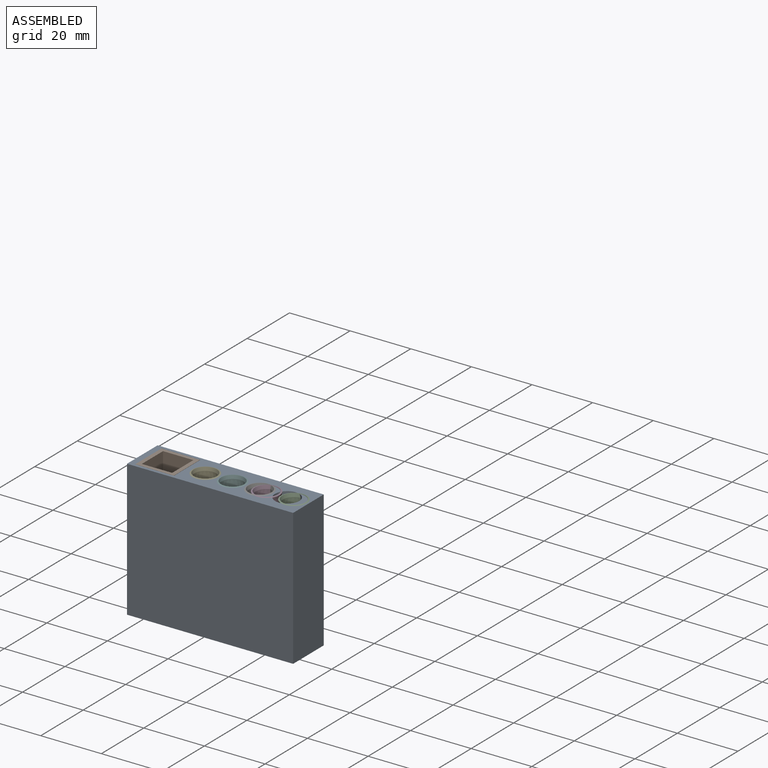
[diagram: assembled view]
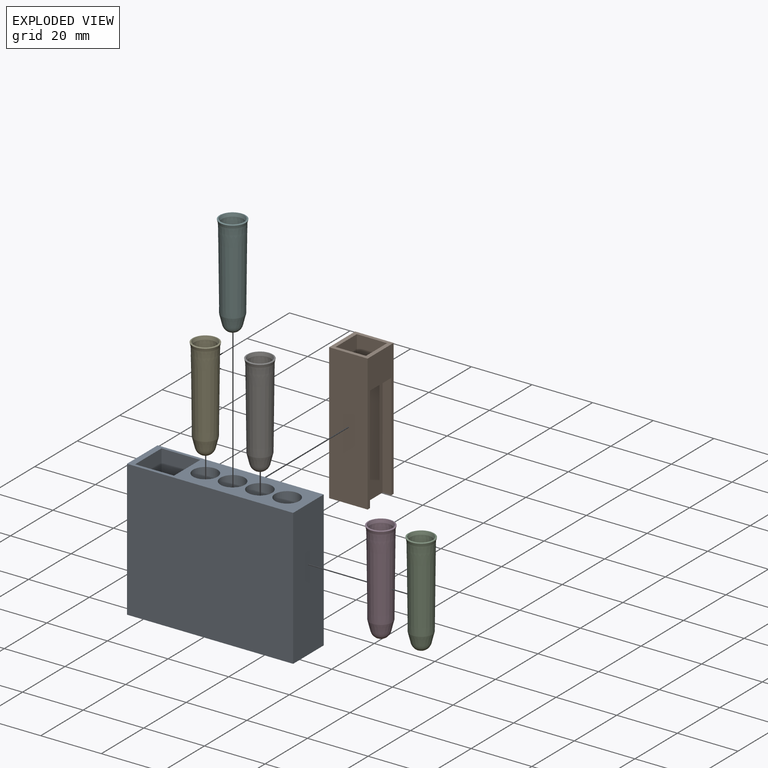
[diagram: exploded view]
GUIDED TOUR — MATED ASSEMBLY (Onshape document 0717bef66db02b48a8c97757, AutoMate assembly 0717bef66db02b48a8c97757_43befdc67e7c05a924248716_53739d4e575a2b0b9f38c01b_default)

This assembly has 7 components, labeled P0..P6 below (a component is one placed occurrence of a part; the same part can appear more than once), held together by 4 mates. A mate is a constraint between two components; its type names the relative motion it leaves free:
  FASTENED — locks the two components together rigidly (no relative motion).
Axis/direction vectors are unit vectors and 'through' points are millimeter coordinates, both in the assembly's world frame.

MATES
  1. FASTENED "緊固 4": P6 <-> P0, direction (0.000, 0.000, 1.000) through (-5.13, 2.04, 14.41) mm
  2. FASTENED "緊固 2": P4 <-> P0, direction (0.000, 0.000, 1.000) through (-23.13, 2.04, 14.41) mm
  3. FASTENED "緊固 1": P1 <-> P0, direction (0.000, 1.000, 0.000) through (-41.93, 2.04, 14.41) mm
  4. FASTENED "緊固 3": P5 <-> P0, direction (0.000, 0.000, 1.000) through (-14.13, 2.04, 14.41) mm

ASSEMBLY ORDER
  1. P0 — the base component [order heuristic]
  2. P2 — core [order heuristic]
  3. P3 — core [order heuristic]
  4. P4 — core [order heuristic]
  5. P5 — core [order heuristic]
  6. P6 — core [order heuristic]
  7. P1 [order verified]
Order-tag legend:
  [order verified] — this step's position reverses a verified removal order: the component was checked to insert without passing through the ones already placed.
  [order heuristic] — the first 6 components form the assembly's core: parts whose collision-free extraction could not be verified, listed in mate-graph order.

Of the 7 components, 2 carry the full construction recipe — the FeatureScript program that regenerates the part's solid from scratch; the rest are supplied as boundary geometry only.
Each toured component is shown spotlighted twice — in the assembled view, then in the exploded view, where a leader line traces a displaced component back to its assembled socket (saturated green if recipe-attached, orange if geometry-only; every other component desaturated gray) — followed by its recipe or geometry summary and the mates that hold it.
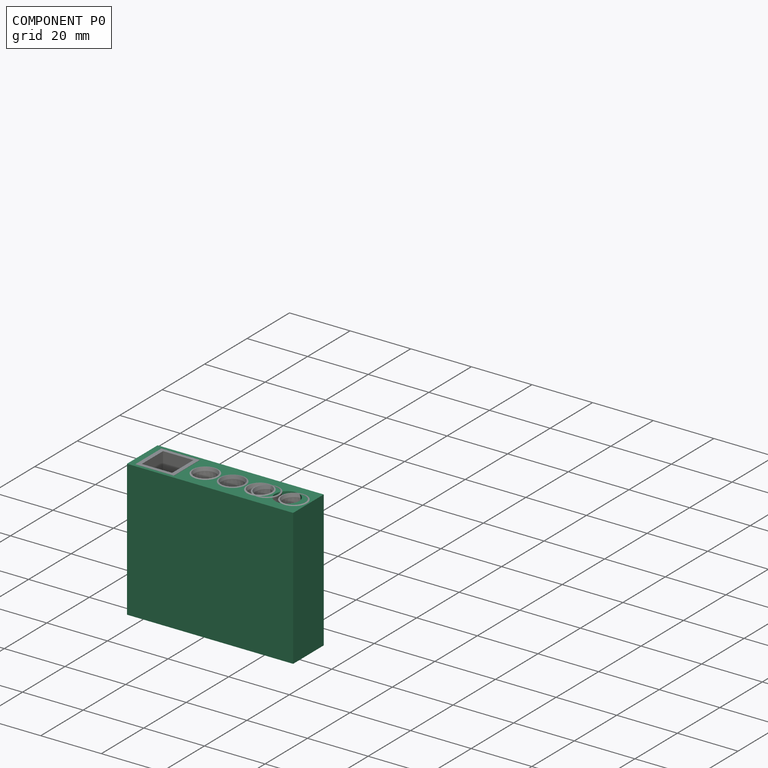
[diagram: component P0 — assembled]
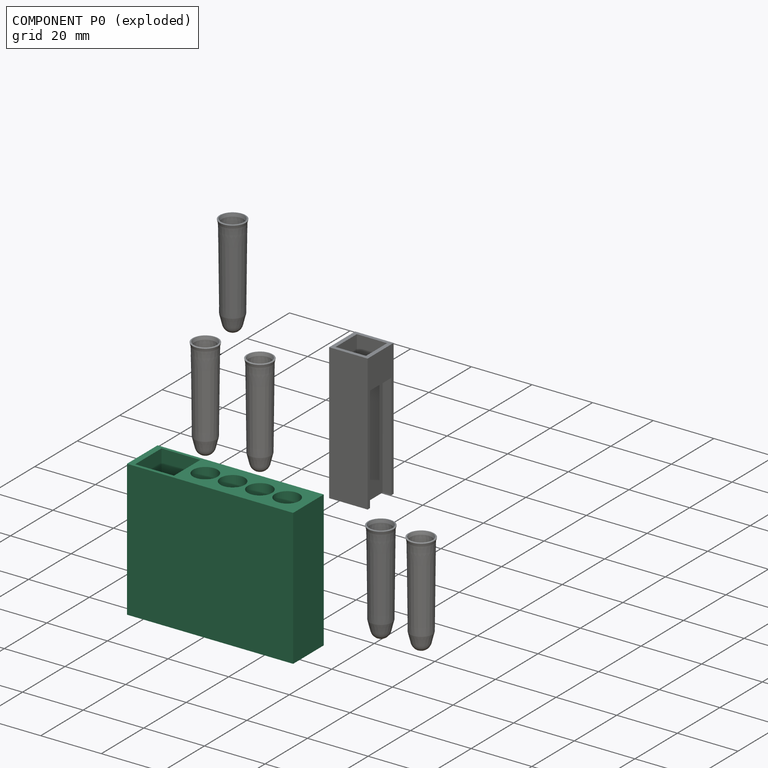
[diagram: component P0 — exploded]
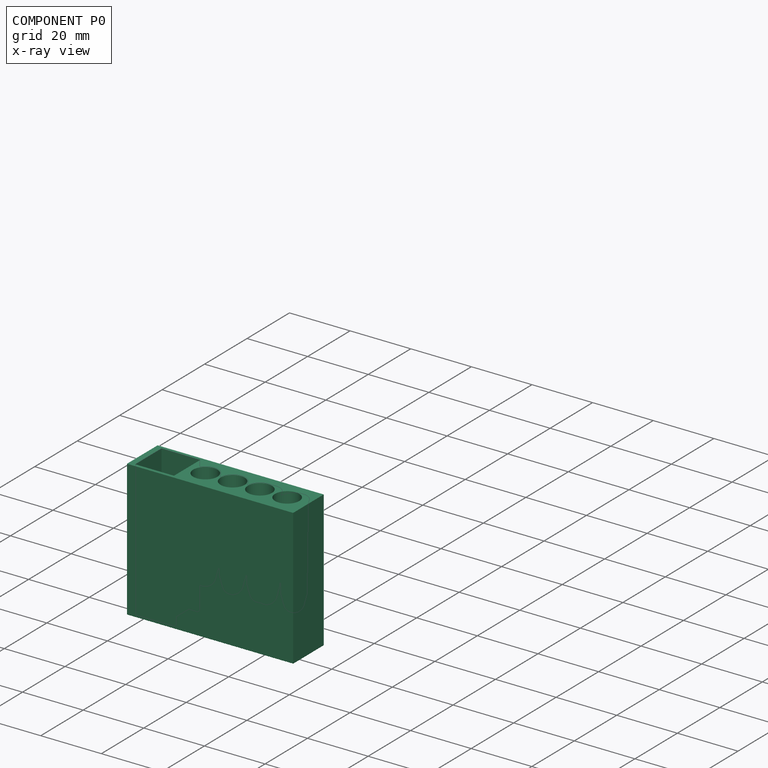
[diagram: component P0 — x-ray view]
COMPONENT P0 — recipe-attached (CADFS 00457629, mesh-verified: the recipe's output STEP matches this component's geometry to below the mesh-comparison resolution (tessellation chordal tolerance ~0.109 mm)).
Held by: FASTENED mate "緊固 4" to P6; FASTENED mate "緊固 2" to P4; FASTENED mate "緊固 1" to P1; FASTENED mate "緊固 3" to P5.
Construction recipe (FeatureScript — the CAD program that rebuilds this solid; sketch coordinates are in the units given by the * unit suffixes, e.g. mm):

FeatureScript 1511;
import(path : "onshape/std/geometry.fs", version : "1511.0");
import(path : "onshape/std/common.fs", version : "1511.0");
const mm = millimeter;
const VERTEX = EntityType.VERTEX;
const EDGE = EntityType.EDGE;
const FACE = EntityType.FACE;
const BODY = EntityType.BODY;
function v(x, y){return vector(x, y);}
function OD(order){return orderDisambiguation(order);}
function OSD(set){return originalSetDisambiguation(set);}
function TD(topology){return topologyDisambiguation(topology);}
function TDD(query){return trueDependencyDisambiguation(query);}
function sQuery(a, b, c) {return sketchEntityQuery(a, b, c);}

annotation { "Feature Type Name" : "Feature", "Feature Type Description" : "" }
export const myFeature = defineFeature(function(context is Context, id is Id, definition is map)
    precondition{}
    {
        {
            var Q0;
            Q0=qCreatedBy(makeId("Top.planeOp"),FACE);
            var sketch = newSketch(context, id + "F0", { "sketchPlane" : qUnion([Q0])});
            skLineSegment(sketch, "E0.bottom", {"start": v(-47.8, 7.2) * mm, "end": v(7, 7.2) * mm});
            skLineSegment(sketch, "E0.top", {"start": v(-47.8, -7.2) * mm, "end": v(7, -7.2) * mm});
            skLineSegment(sketch, "E0.left", {"start": v(-47.8, 7.2) * mm, "end": v(-47.8, -7.2) * mm});
            skLineSegment(sketch, "E0.right", {"start": v(7, 7.2) * mm, "end": v(7, -7.2) * mm});
            skCircle(sketch, "E1", {"center": v(-27, 0) * mm, "radius": 4 * mm});
            skCircle(sketch, "E2", {"center": v(-18, 0) * mm, "radius": 4 * mm});
            skCircle(sketch, "E3", {"center": v(0, 0) * mm, "radius": 4 * mm});
            skLineSegment(sketch, "E4.bottom", {"start": v(-45.8, 6.2) * mm, "end": v(-33, 6.2) * mm});
            skLineSegment(sketch, "E4.top", {"start": v(-45.8, -6.2) * mm, "end": v(-33, -6.2) * mm});
            skLineSegment(sketch, "E4.left", {"start": v(-45.8, 6.2) * mm, "end": v(-45.8, -6.2) * mm});
            skLineSegment(sketch, "E4.right", {"start": v(-33, 6.2) * mm, "end": v(-33, -6.2) * mm});
            skCircle(sketch, "E5", {"center": v(-9, 0) * mm, "radius": 4 * mm});
            skSolve(sketch);
        }
        {
            var Q0;
            Q0=makeQuery(id+"F0.imprint","IMPRINT",FACE,{"disambiguationData":[TD([[makeQuery(id+"F0.imprint","IMPRINT",EDGE,{"derivedFrom":sQuery(id+"F0.wireOp",EDGE,"E0.bottom")}),-1.0]])]});
            extrude(context, id + "F1", {"entities" : qUnion([Q0]), "depth" : 45 * mm});
        }
    });
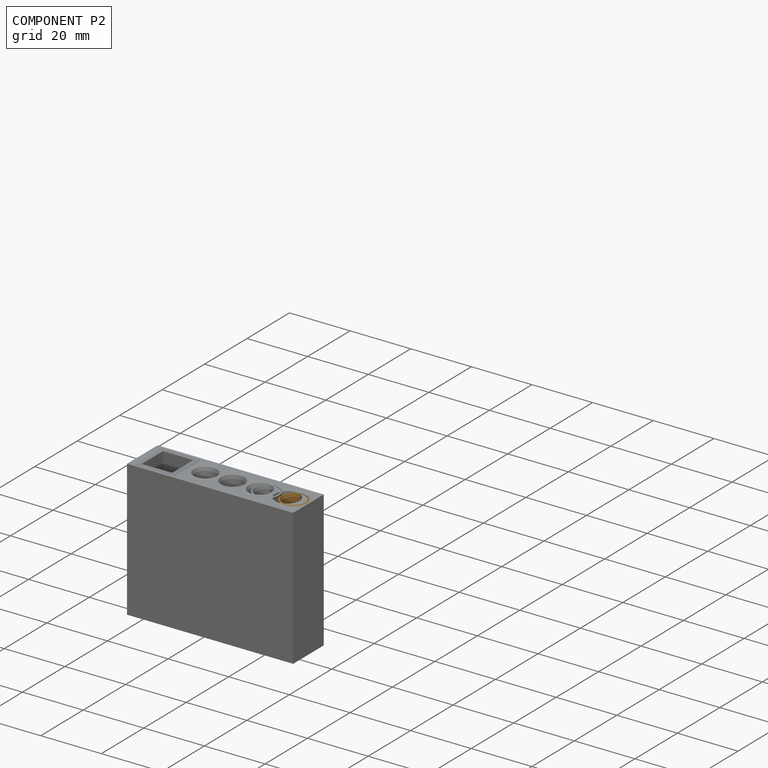
[diagram: component P2 — assembled]
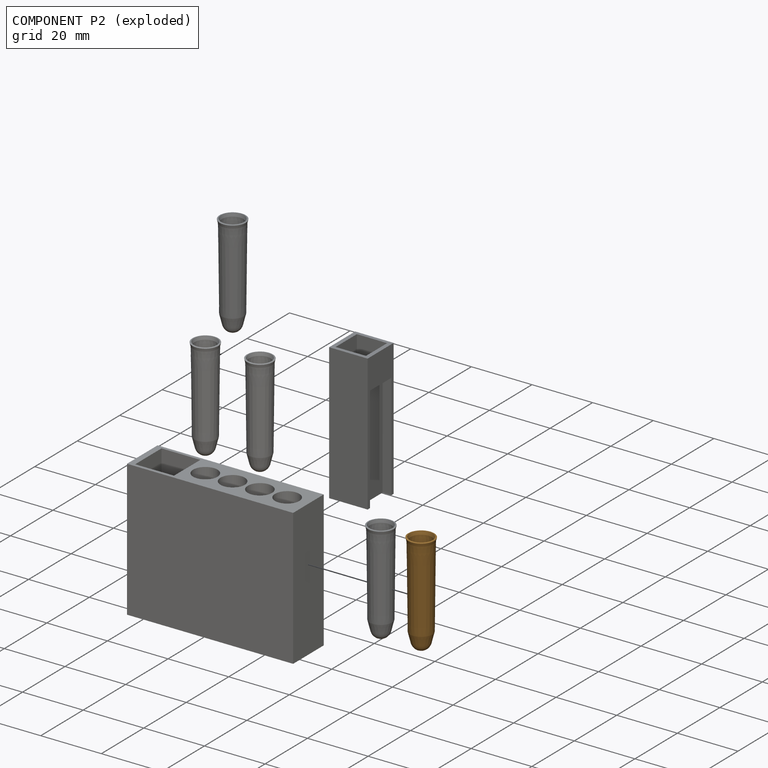
[diagram: component P2 — exploded]
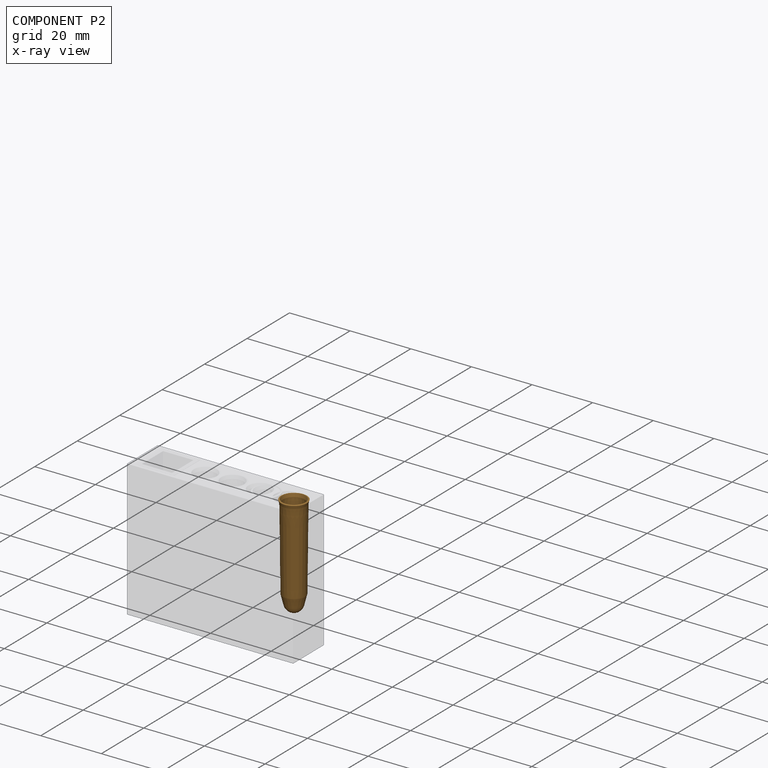
[diagram: component P2 — x-ray view]
COMPONENT P2 — geometry summary (no construction recipe available for this part):
  bounding box: 33.8 x 8.6 x 8.6 mm
  B-rep topology: 1 solid, 11 faces, 44 edges
  volume: 366 mm^3 (15% of its bounding box)
  symmetry: revolution-symmetric about the z axis through its bounding-box center; mirror-symmetric across its x mid-plane, y mid-plane
Held by: no mates (free).
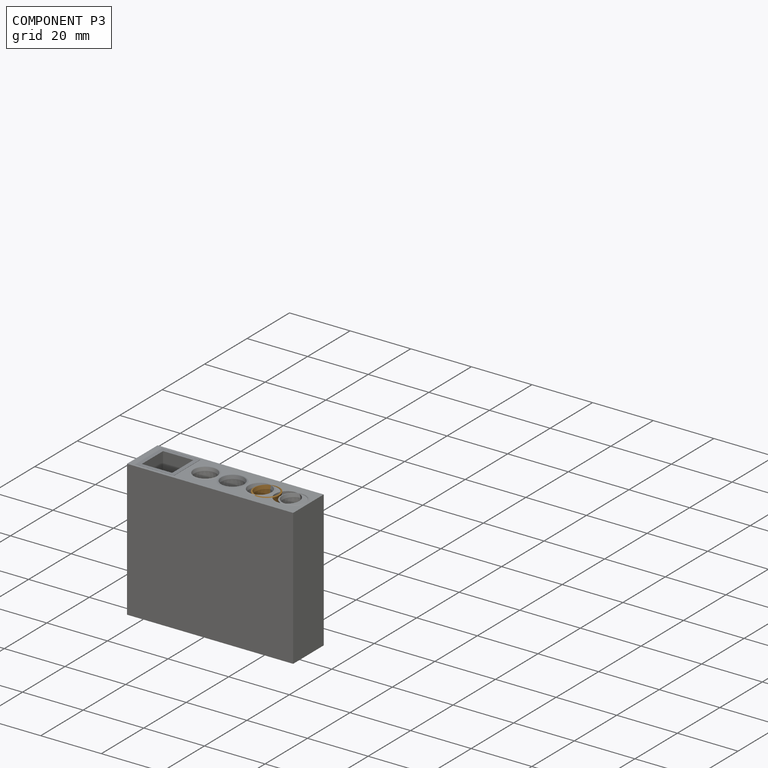
[diagram: component P3 — assembled]
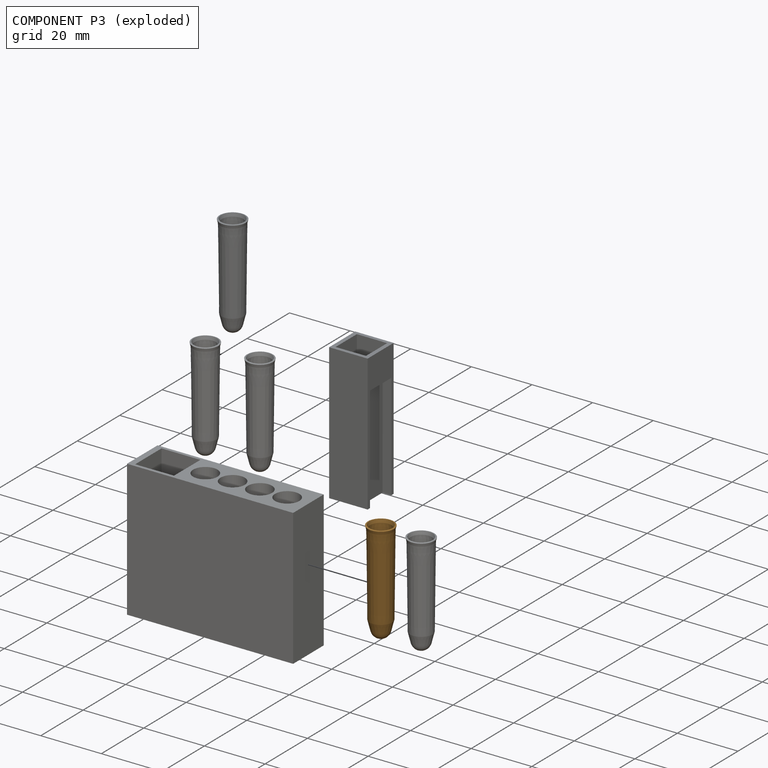
[diagram: component P3 — exploded]
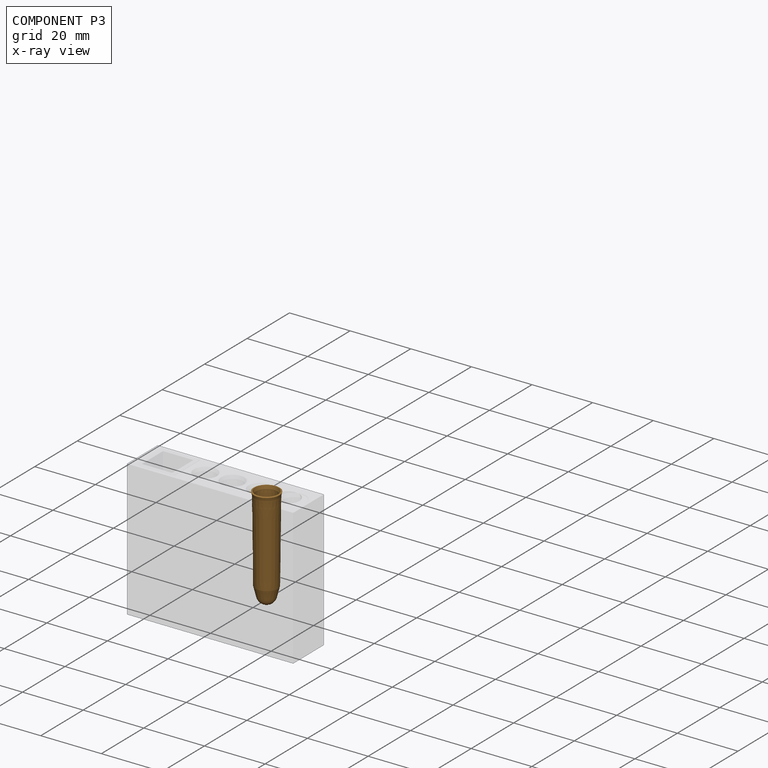
[diagram: component P3 — x-ray view]
COMPONENT P3 — geometry summary (no construction recipe available for this part):
  bounding box: 33.8 x 8.6 x 8.6 mm
  B-rep topology: 1 solid, 11 faces, 44 edges
  volume: 366 mm^3 (15% of its bounding box)
  symmetry: revolution-symmetric about the z axis through its bounding-box center; mirror-symmetric across its x mid-plane, y mid-plane
Held by: no mates (free).
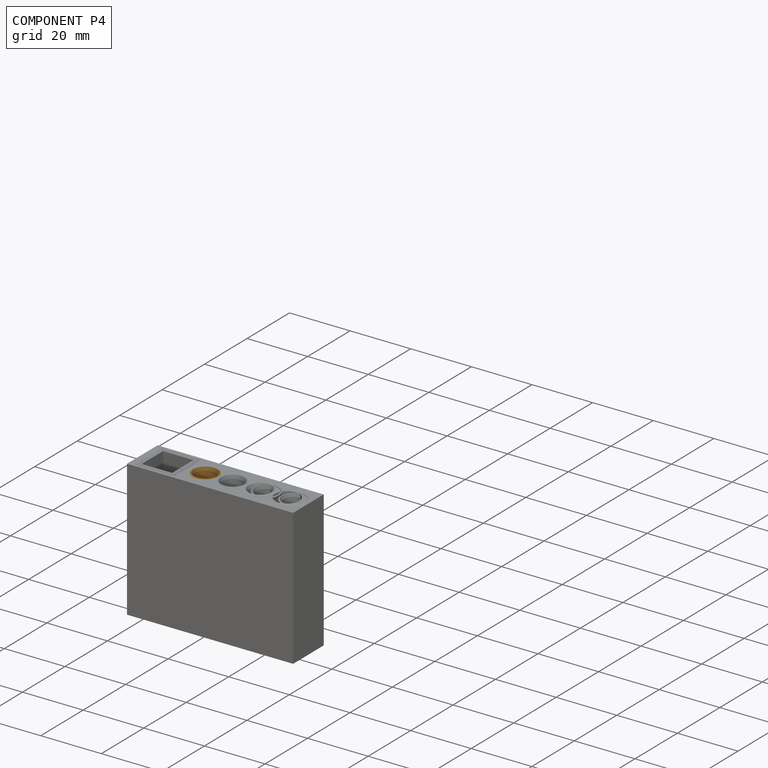
[diagram: component P4 — assembled]
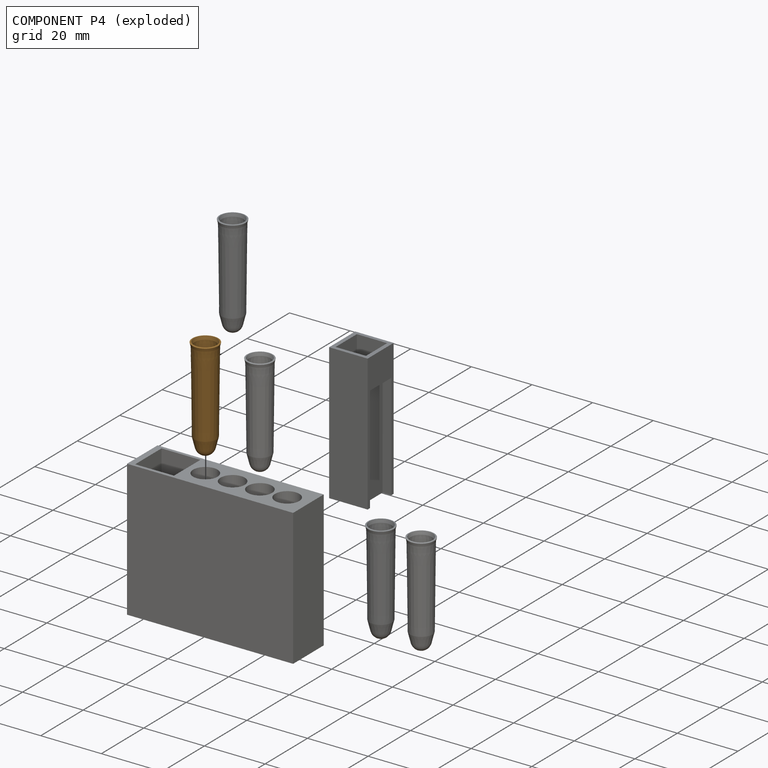
[diagram: component P4 — exploded]
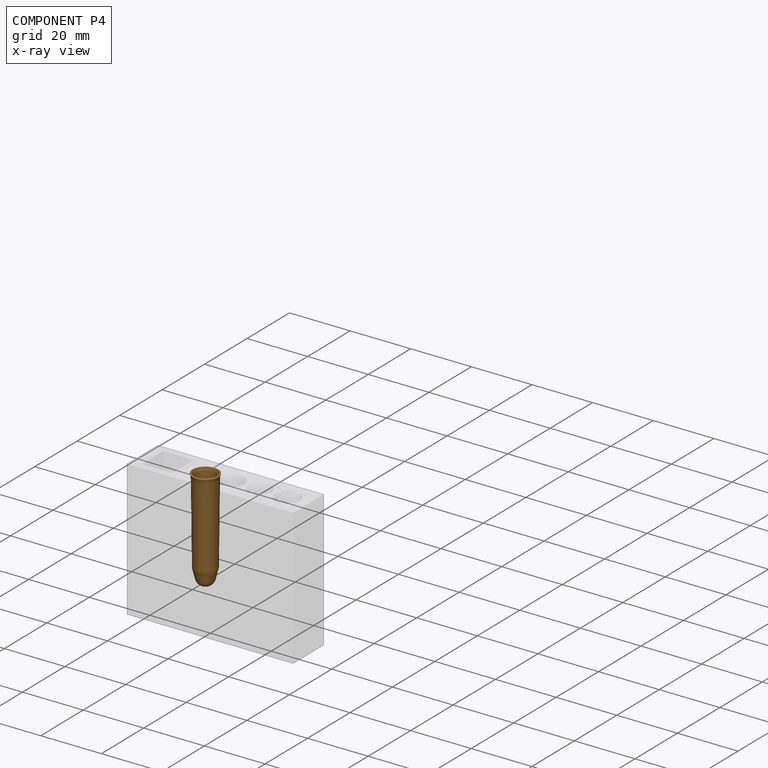
[diagram: component P4 — x-ray view]
COMPONENT P4 — geometry summary (no construction recipe available for this part):
  bounding box: 33.8 x 8.6 x 8.6 mm
  B-rep topology: 1 solid, 11 faces, 44 edges
  volume: 366 mm^3 (15% of its bounding box)
  symmetry: revolution-symmetric about the z axis through its bounding-box center; mirror-symmetric across its x mid-plane, y mid-plane
Held by: FASTENED mate "緊固 2" to P0.
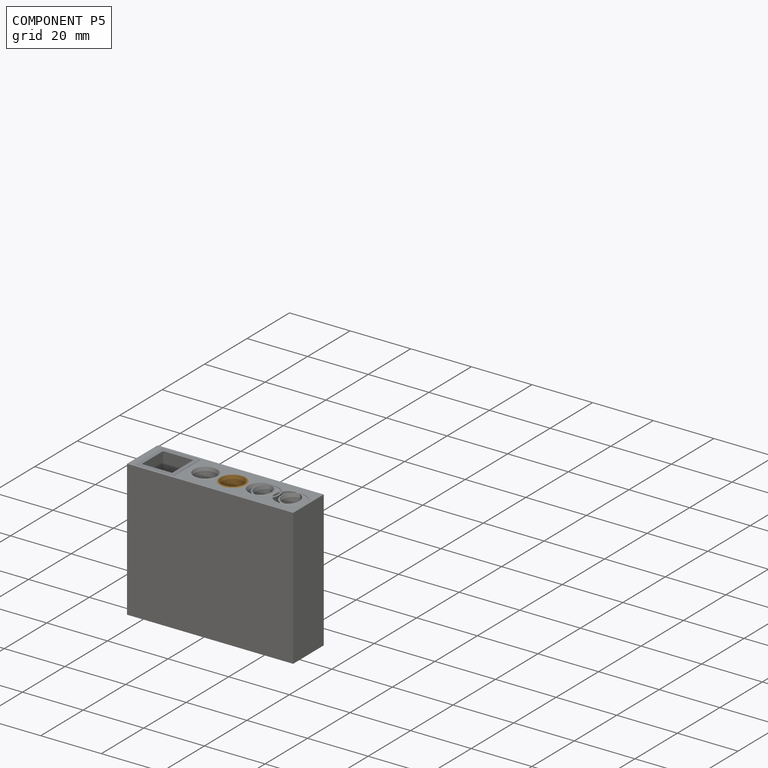
[diagram: component P5 — assembled]
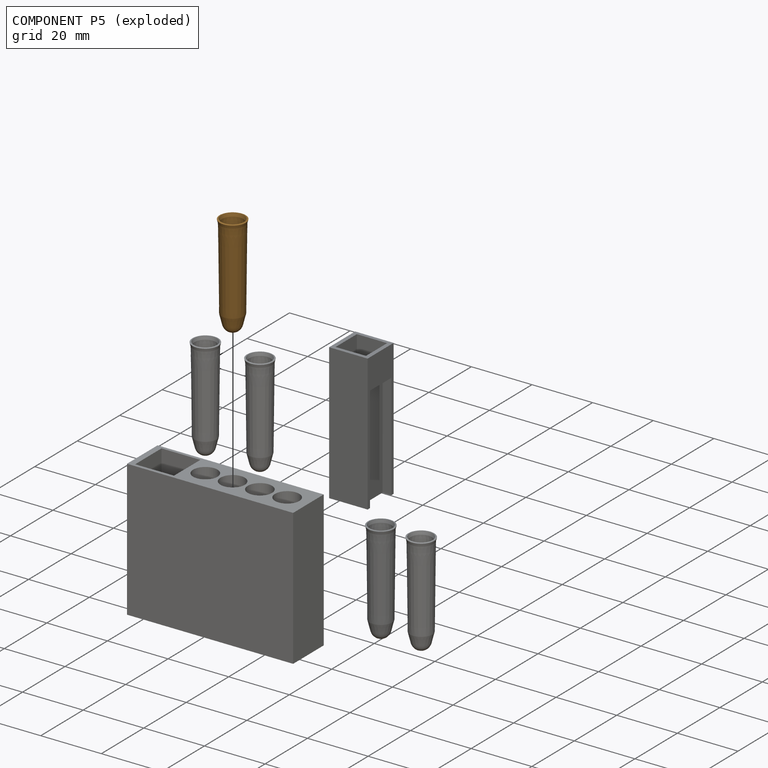
[diagram: component P5 — exploded]
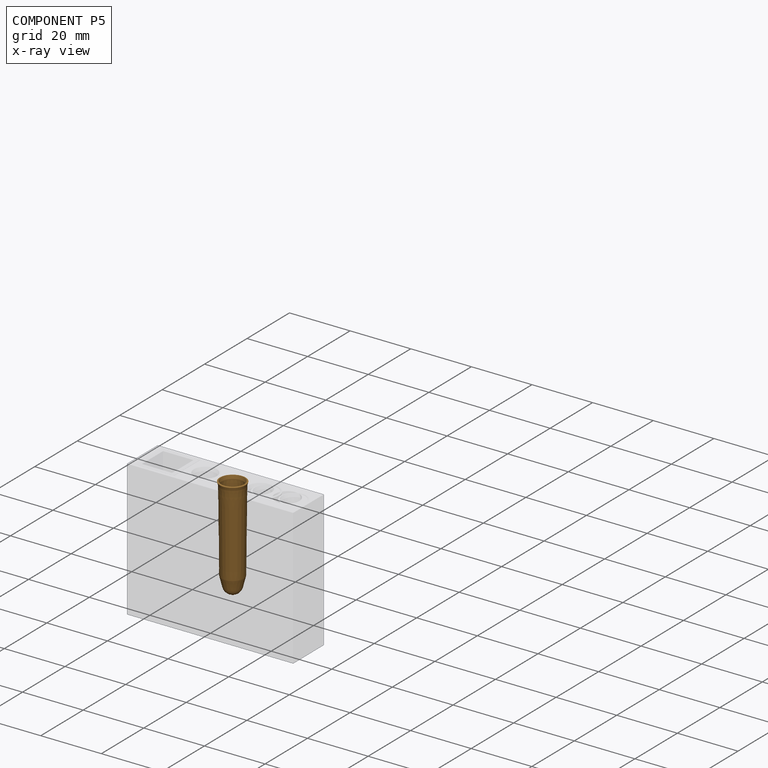
[diagram: component P5 — x-ray view]
COMPONENT P5 — geometry summary (no construction recipe available for this part):
  bounding box: 33.8 x 8.6 x 8.6 mm
  B-rep topology: 1 solid, 11 faces, 44 edges
  volume: 366 mm^3 (15% of its bounding box)
  symmetry: revolution-symmetric about the z axis through its bounding-box center; mirror-symmetric across its x mid-plane, y mid-plane
Held by: FASTENED mate "緊固 3" to P0.
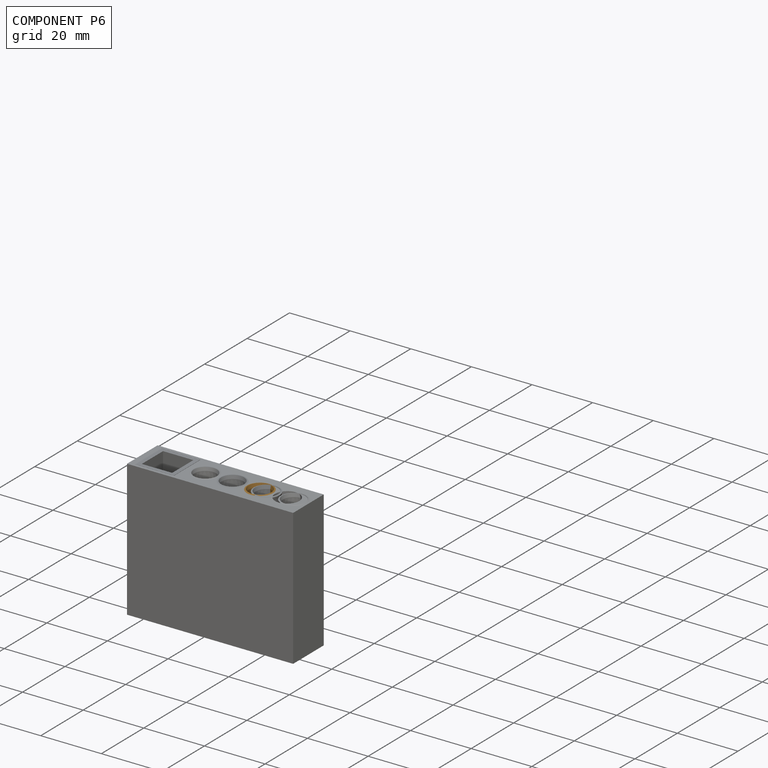
[diagram: component P6 — assembled]
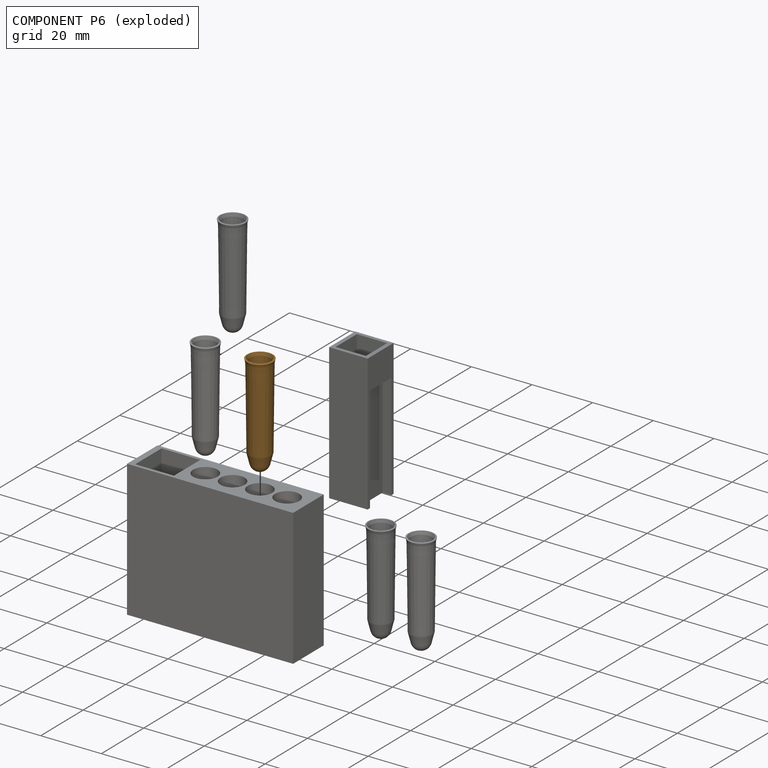
[diagram: component P6 — exploded]
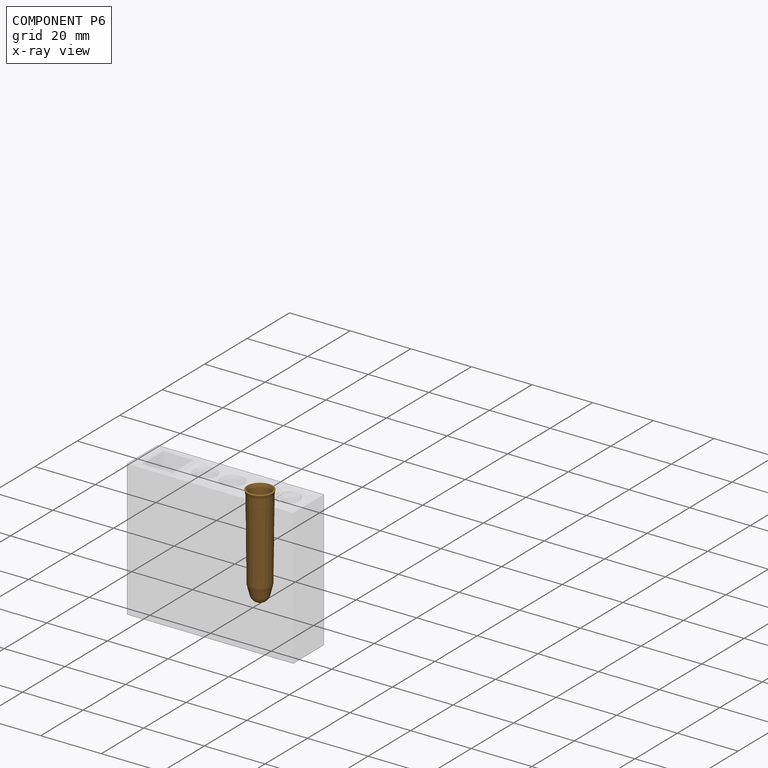
[diagram: component P6 — x-ray view]
COMPONENT P6 — geometry summary (no construction recipe available for this part):
  bounding box: 33.8 x 8.6 x 8.6 mm
  B-rep topology: 1 solid, 11 faces, 44 edges
  volume: 366 mm^3 (15% of its bounding box)
  symmetry: revolution-symmetric about the z axis through its bounding-box center; mirror-symmetric across its x mid-plane, y mid-plane
Held by: FASTENED mate "緊固 4" to P0.
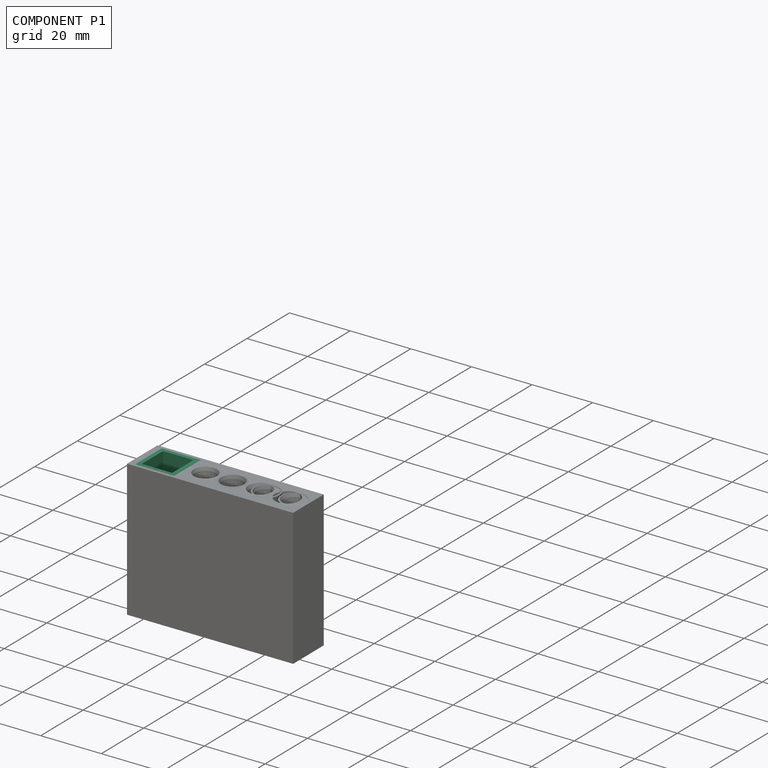
[diagram: component P1 — assembled]
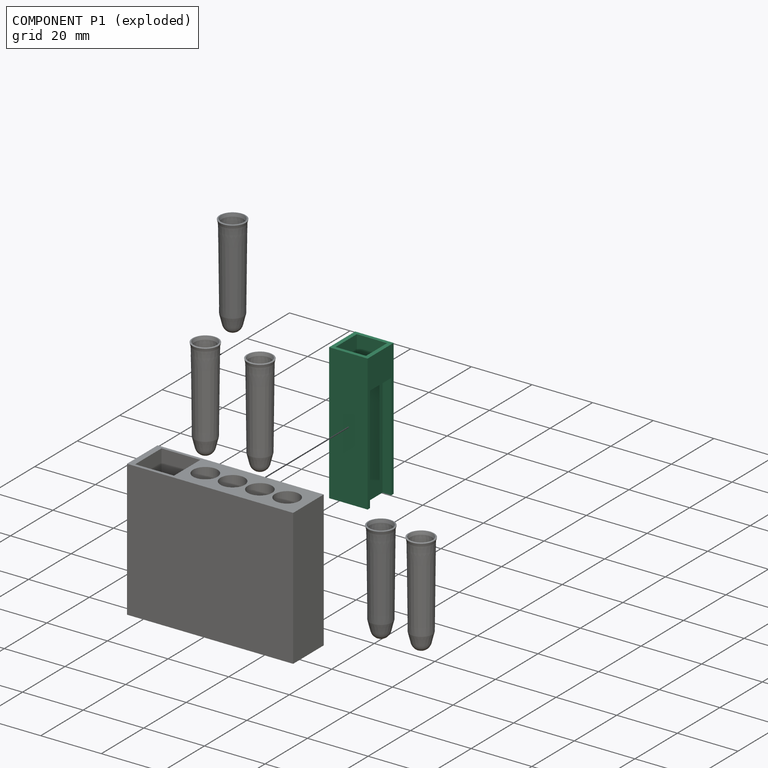
[diagram: component P1 — exploded]
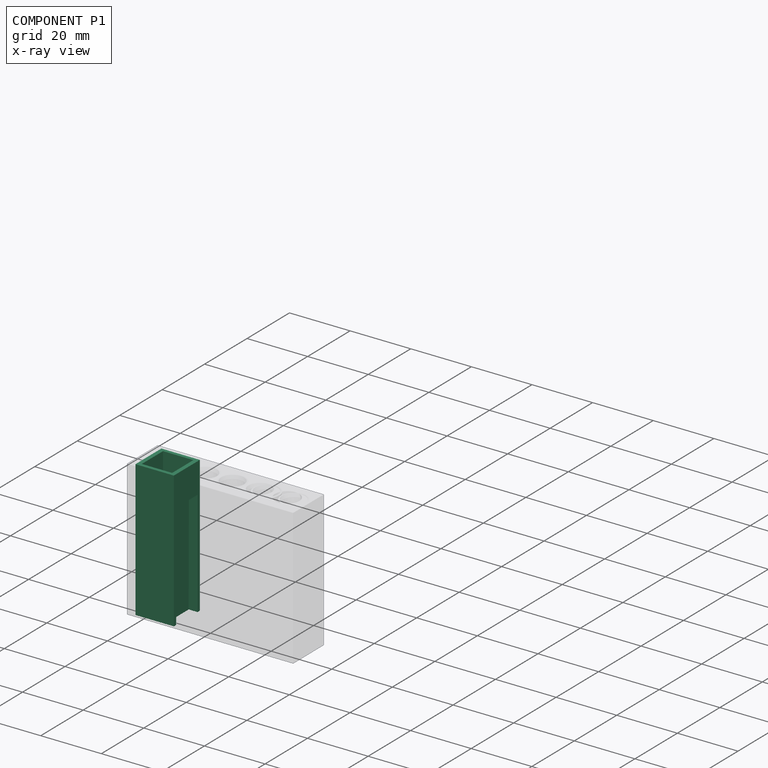
[diagram: component P1 — x-ray view]
COMPONENT P1 — recipe-attached (CADFS 00457624, mesh-verified: the recipe's output STEP matches this component's geometry to below the mesh-comparison resolution (tessellation chordal tolerance ~0.0725 mm)).
Held by: FASTENED mate "緊固 1" to P0.
Construction recipe (FeatureScript — the CAD program that rebuilds this solid; sketch coordinates are in the units given by the * unit suffixes, e.g. mm):

FeatureScript 1511;
import(path : "onshape/std/geometry.fs", version : "1511.0");
import(path : "onshape/std/common.fs", version : "1511.0");
const mm = millimeter;
const VERTEX = EntityType.VERTEX;
const EDGE = EntityType.EDGE;
const FACE = EntityType.FACE;
const BODY = EntityType.BODY;
function v(x, y){return vector(x, y);}
function OD(order){return orderDisambiguation(order);}
function OSD(set){return originalSetDisambiguation(set);}
function TD(topology){return topologyDisambiguation(topology);}
function TDD(query){return trueDependencyDisambiguation(query);}
function sQuery(a, b, c) {return sketchEntityQuery(a, b, c);}

annotation { "Feature Type Name" : "Feature", "Feature Type Description" : "" }
export const myFeature = defineFeature(function(context is Context, id is Id, definition is map)
    precondition{}
    {
        {
            var Q0;
            Q0=qCreatedBy(makeId("Front.planeOp"),FACE);
            var sketch = newSketch(context, id + "F0", { "sketchPlane" : qUnion([Q0])});
            skLineSegment(sketch, "E0", {"start": v(-6.35, 45) * mm, "end": v(-6.35, 35) * mm});
            skLineSegment(sketch, "E1", {"start": v(-6.35, 35) * mm, "end": v(-3.51, 33) * mm});
            skLineSegment(sketch, "E2", {"start": v(-3.51, 33) * mm, "end": v(-3.44, 0) * mm});
            skLineSegment(sketch, "E3", {"start": v(-3.44, 0) * mm, "end": v(0, 0) * mm});
            skLineSegment(sketch, "E4", {"start": v(0, 0) * mm, "end": v(0, 1.69) * mm});
            skLineSegment(sketch, "E5", {"start": v(0, 1.69) * mm, "end": v(-2.35, 1.69) * mm});
            skLineSegment(sketch, "E6", {"start": v(-2.35, 1.69) * mm, "end": v(-2.42, 33.45) * mm});
            skLineSegment(sketch, "E7", {"start": v(-2.42, 33.45) * mm, "end": v(-5, 35.27) * mm});
            skLineSegment(sketch, "E8", {"start": v(-5, 35.27) * mm, "end": v(-5, 45) * mm});
            skLineSegment(sketch, "E9", {"start": v(-5, 45) * mm, "end": v(-6.35, 45) * mm});
            skLineSegment(sketch, "E10.MirrorCS", {"start": v(6.35, 35) * mm, "end": v(3.51, 33) * mm});
            skLineSegment(sketch, "E11.MirrorCS", {"start": v(0, 1.69) * mm, "end": v(2.35, 1.69) * mm});
            skLineSegment(sketch, "E12.MirrorCS", {"start": v(2.42, 33.45) * mm, "end": v(5, 35.27) * mm});
            skLineSegment(sketch, "E13.MirrorCS", {"start": v(5, 45) * mm, "end": v(6.35, 45) * mm});
            skLineSegment(sketch, "E14.MirrorCS", {"start": v(3.51, 33) * mm, "end": v(3.44, 0) * mm});
            skLineSegment(sketch, "E15.MirrorCS", {"start": v(3.44, 0) * mm, "end": v(0, 0) * mm});
            skLineSegment(sketch, "E16.MirrorCS", {"start": v(2.35, 1.69) * mm, "end": v(2.42, 33.45) * mm});
            skLineSegment(sketch, "E17.MirrorCS", {"start": v(5, 35.27) * mm, "end": v(5, 45) * mm});
            skLineSegment(sketch, "E18.MirrorCS", {"start": v(6.35, 45) * mm, "end": v(6.35, 35) * mm});
            skSolve(sketch);
        }
        {
            var Q0;
            Q0=makeQuery(id+"F0.imprint","IMPRINT",FACE,{"disambiguationData":[TD([[makeQuery(id+"F0.imprint","IMPRINT",EDGE,{"derivedFrom":sQuery(id+"F0.wireOp",EDGE,"E0")}),1.0]])]});
            var Q1;
            Q1=makeQuery(id+"F0.imprint","IMPRINT",FACE,{"disambiguationData":[TD([[makeQuery(id+"F0.imprint","IMPRINT",EDGE,{"derivedFrom":sQuery(id+"F0.wireOp",EDGE,"E10.MirrorCS")}),-1.0]])]});
            extrude(context, id + "F1", {"entities" : qUnion([Q0, Q1]), "depth" : 10 * mm, "offsetDistance" : 25 * mm});
        }
        {
            var Q0;
            Q0=qCreatedBy(makeId("Front.planeOp"),FACE);
            var sketch = newSketch(context, id + "F2", { "sketchPlane" : qUnion([Q0])});
            skLineSegment(sketch, "E19.bottom", {"start": v(6.35, 45) * mm, "end": v(-6.35, 45) * mm});
            skLineSegment(sketch, "E19.top", {"start": v(6.35, 0) * mm, "end": v(-6.35, 0) * mm});
            skLineSegment(sketch, "E19.left", {"start": v(6.35, 45) * mm, "end": v(6.35, 0) * mm});
            skLineSegment(sketch, "E19.right", {"start": v(-6.35, 45) * mm, "end": v(-6.35, 0) * mm});
            skSolve(sketch);
        }
        {
            var Q0;
            Q0 = qSketchRegion(id + "F2", true);
            extrude(context, id + "F3", {"entities" : qUnion([Q0]), "operationType" : NewBodyOperationType.ADD, "oppositeDirection" : true, "depth" : 1.14 * mm});
        }
        {
            var Q0;
            Q0=makeQuery(id+"F1.opExtrude","CAP_FACE",FACE,{"disambiguationData":[OSD([sQuery(id+"F0.wireOp",EDGE,"E0"),sQuery(id+"F0.wireOp",EDGE,"E1"),sQuery(id+"F0.wireOp",EDGE,"E2"),sQuery(id+"F0.wireOp",EDGE,"E3"),sQuery(id+"F0.wireOp",EDGE,"E5"),sQuery(id+"F0.wireOp",EDGE,"E6"),sQuery(id+"F0.wireOp",EDGE,"E7"),sQuery(id+"F0.wireOp",EDGE,"E8"),sQuery(id+"F0.wireOp",EDGE,"E9"),sQuery(id+"F0.wireOp",EDGE,"E10.MirrorCS"),sQuery(id+"F0.wireOp",EDGE,"E11.MirrorCS"),sQuery(id+"F0.wireOp",EDGE,"E12.MirrorCS"),sQuery(id+"F0.wireOp",EDGE,"E13.MirrorCS"),sQuery(id+"F0.wireOp",EDGE,"E14.MirrorCS"),sQuery(id+"F0.wireOp",EDGE,"E15.MirrorCS"),sQuery(id+"F0.wireOp",EDGE,"E16.MirrorCS"),sQuery(id+"F0.wireOp",EDGE,"E17.MirrorCS"),sQuery(id+"F0.wireOp",EDGE,"E18.MirrorCS")])],"isStart":false});
            var sketch = newSketch(context, id + "F4", { "sketchPlane" : qUnion([Q0])});
            skLineSegment(sketch, "E20.bottom", {"start": v(-6.35, 45) * mm, "end": v(6.35, 45) * mm});
            skLineSegment(sketch, "E20.top", {"start": v(-6.35, 0) * mm, "end": v(6.35, 0) * mm});
            skLineSegment(sketch, "E20.left", {"start": v(-6.35, 45) * mm, "end": v(-6.35, 0) * mm});
            skLineSegment(sketch, "E20.right", {"start": v(6.35, 45) * mm, "end": v(6.35, 0) * mm});
            skSolve(sketch);
        }
        {
            var Q0;
            Q0 = qSketchRegion(id + "F4", true);
            extrude(context, id + "F5", {"entities" : qUnion([Q0]), "operationType" : NewBodyOperationType.ADD, "depth" : 1.14 * mm});
        }
    });
PROVENANCE & LICENSES
Assembly (occurrences, transforms, mates, per-part STEP geometry): AutoMate dataset, Zenodo record 7776208, CC0.
Construction recipes: CADFS (HuggingFace VladPyatov/CADFS, CC-BY-4.0, layered over the ABC dataset), FeatureScript reconstruction programs keyed by ABC model id.
Join: ABC meta listings map ABC model id -> Onshape documentId; within a shared document, parts are matched by geometric signature (bounding-box dims + volume at 0.1% relative tolerance, exact B-rep face/solid counts).
Verification: 2 of this assembly's 7 components carry a recipe attachment, and every attachment is mesh-verified: the CADFS STEP and the AutoMate member STEP were compared as meshes in their shared local frame (symmetric sampled-point-to-mesh distance); worst across the 2 attachments: below the mesh-comparison resolution (tessellation chordal tolerance ~0.109 mm) on a 72 mm part.
Renders: orthographic iso camera (az 35 / el 25); the floor grid conveys scale (grid pitch printed in each image; no ruler). In the exploded view each component is displaced by its stored offset vector: the offsets alone carry the explosion direction (mate normal/axis signs are not orientation cues and do not encode it), and separation distances are assigned per mate-chain, not proportionally to assembly-order depth.
